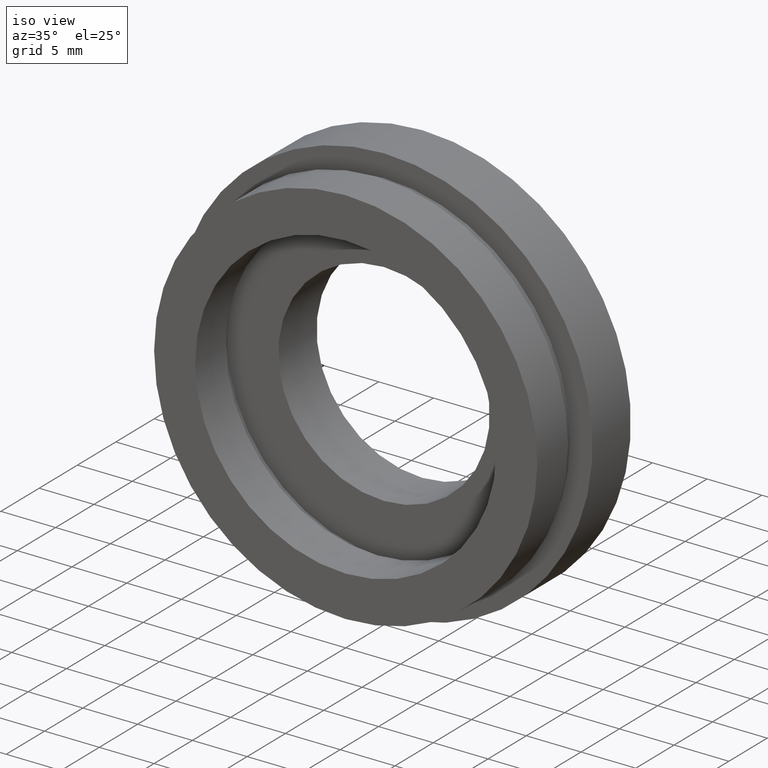
[diagram: clean part render]
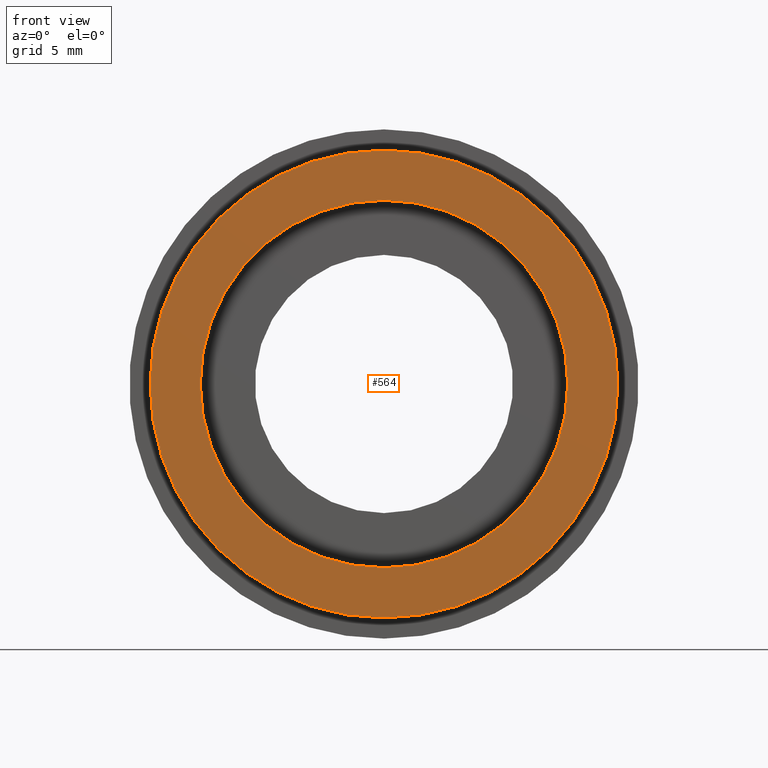
[diagram: tour spotlight — one face highlighted and labeled with its STEP entity id]
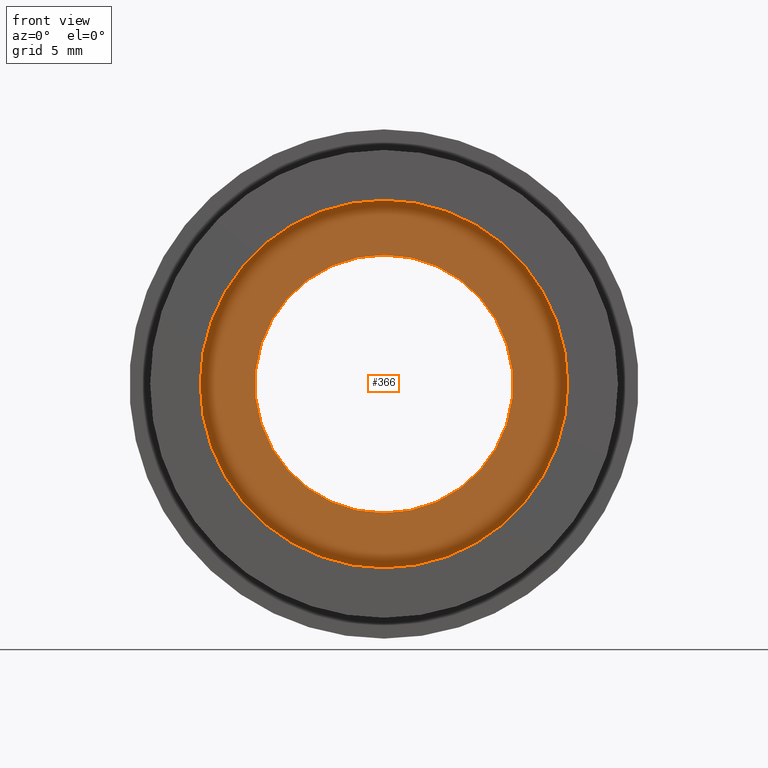
[diagram: tour spotlight — one face highlighted and labeled with its STEP entity id]
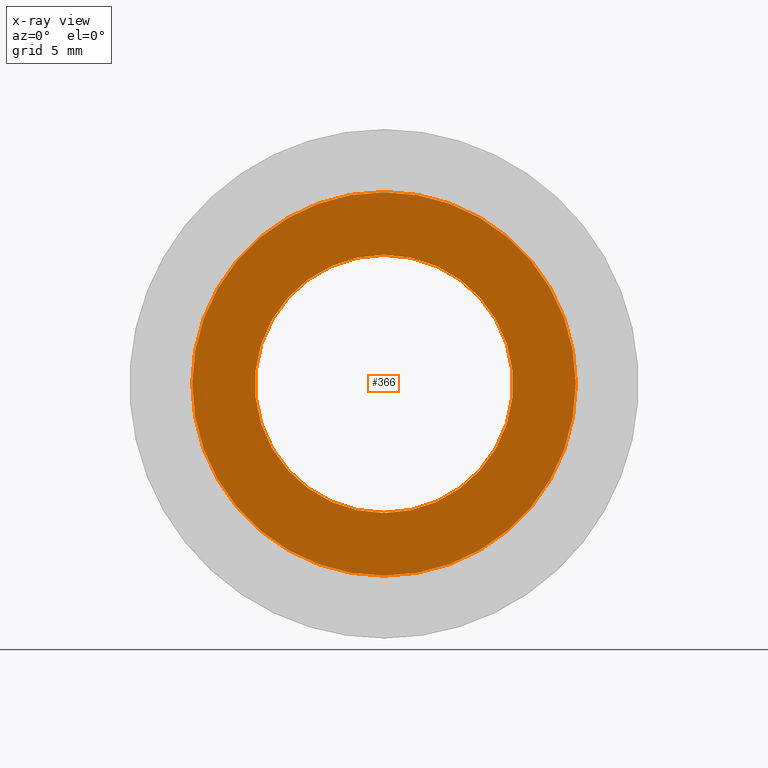
[diagram: x-ray of the same camera — body ghosted, this tour face saturated]
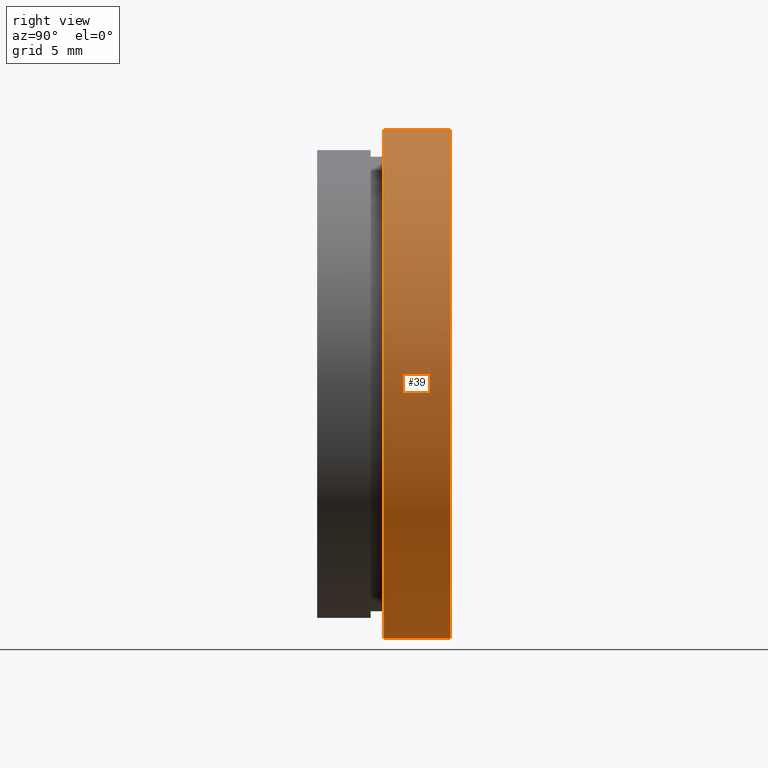
[diagram: tour spotlight — one face highlighted and labeled with its STEP entity id]
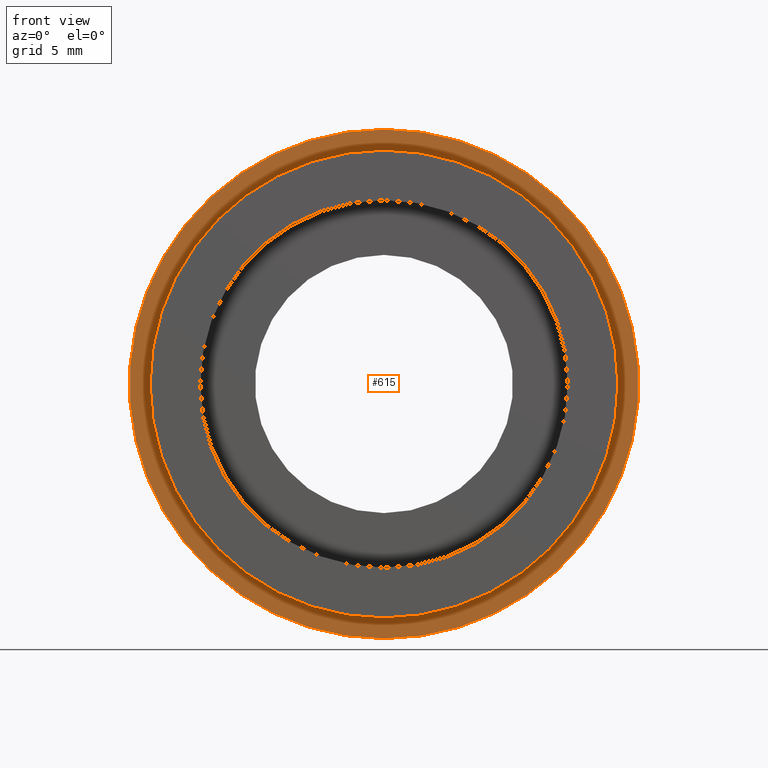
[diagram: tour spotlight — one face highlighted and labeled with its STEP entity id]
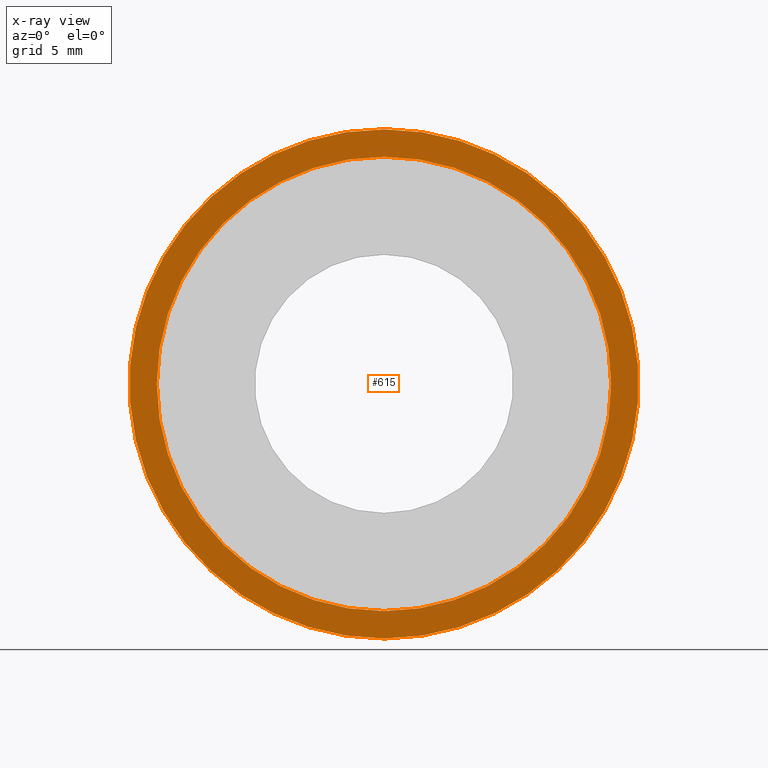
[diagram: x-ray of the same camera — body ghosted, this tour face saturated]
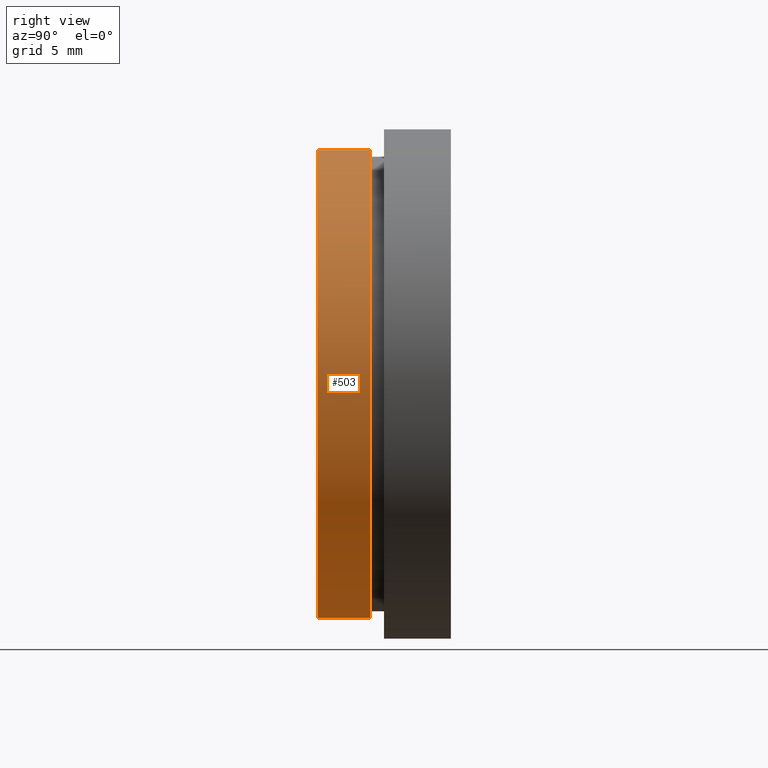
[diagram: tour spotlight — one face highlighted and labeled with its STEP entity id]
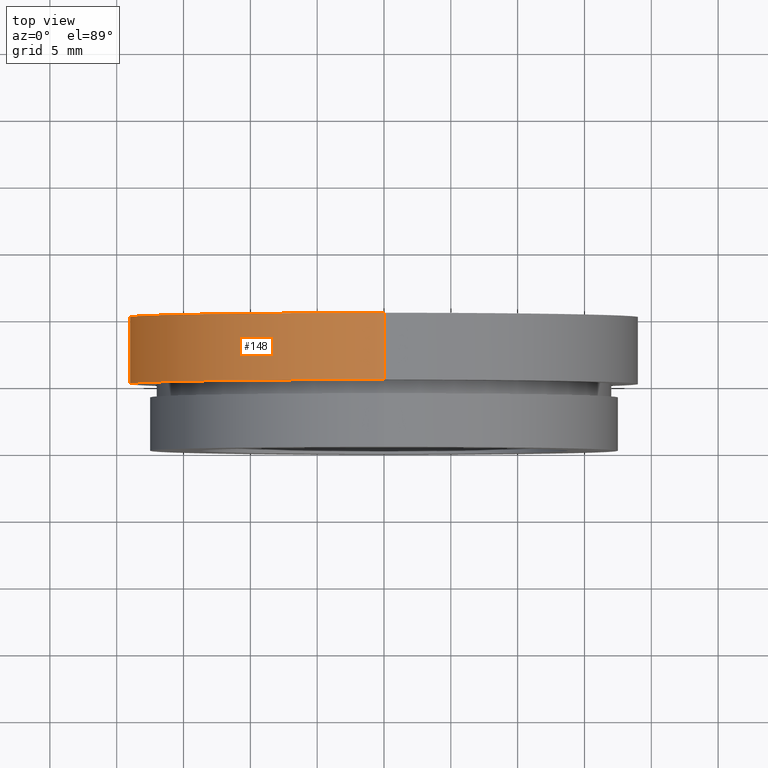
[diagram: tour spotlight — one face highlighted and labeled with its STEP entity id]
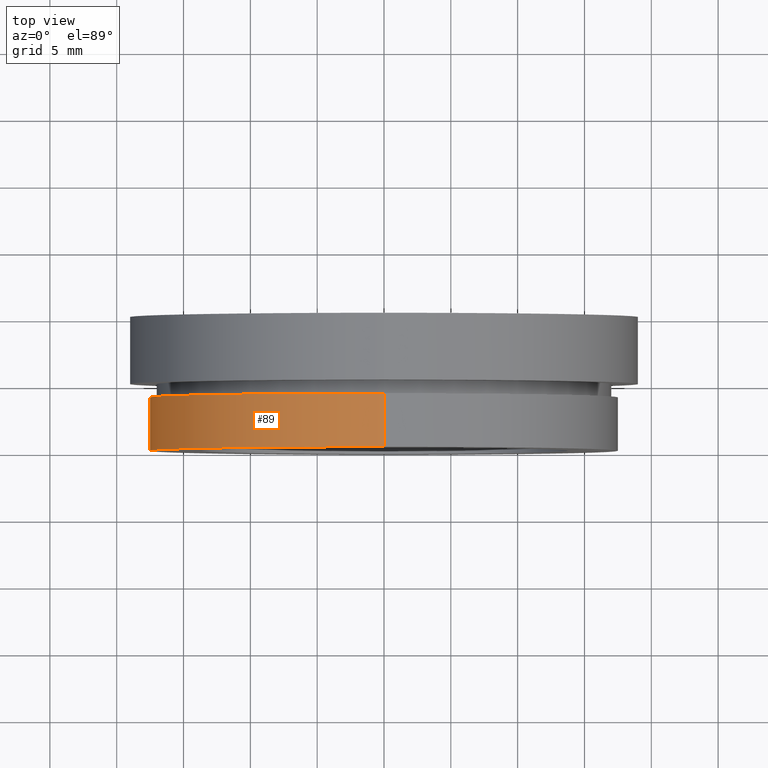
[diagram: tour spotlight — one face highlighted and labeled with its STEP entity id]
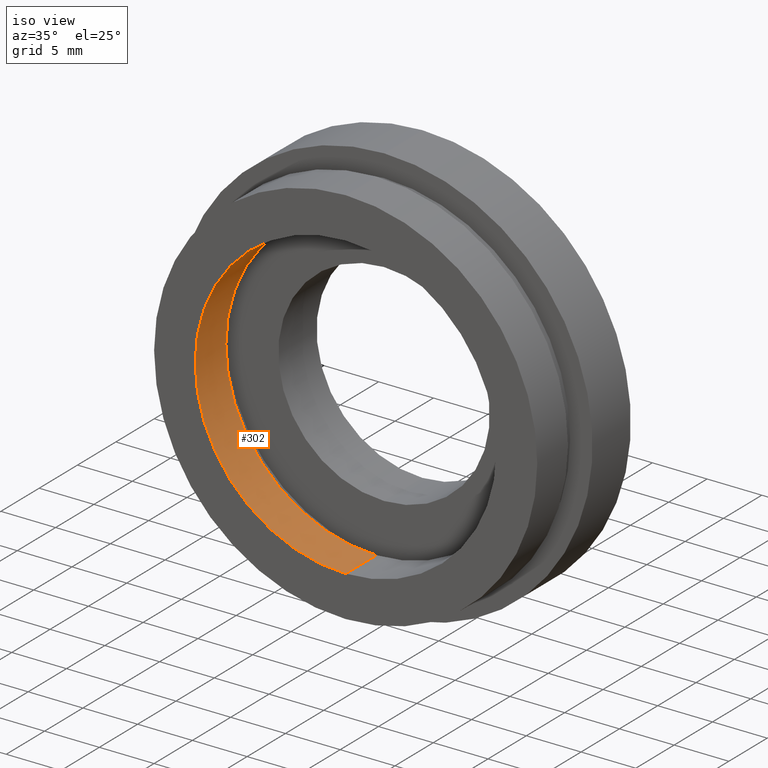
[diagram: tour spotlight — one face highlighted and labeled with its STEP entity id]
A machine part: a face-by-face anatomy tour. The part has 18 B-rep faces; the first image is the clean iso view, then the 8 largest visible faces are spotlighted one at a time (largest first), each with its STEP entity span.

Face 1 — front view, entity #564. In plain terms, the highlighted planar face has unit normal (-0, 1, 0).
Definition (entity closure, byte-faithful):
#36 = CARTESIAN_POINT ( 'NONE',  ( 0.0000000000000000000, 0.0000000000000000000, 0.0000000000000000000 ) ) ;
#44 = DIRECTION ( 'NONE',  ( -0.0000000000000000000, 1.000000000000000000, -0.0000000000000000000 ) ) ;
#69 = ORIENTED_EDGE ( 'NONE', *, *, #443, .T. ) ;
#88 = VERTEX_POINT ( 'NONE', #235 ) ;
#92 = EDGE_CURVE ( 'NONE', #88, #217, #517, .T. ) ;
#158 = DIRECTION ( 'NONE',  ( -0.0000000000000000000, 1.000000000000000000, 0.0000000000000000000 ) ) ;
#192 = DIRECTION ( 'NONE',  ( 0.0000000000000000000, 0.0000000000000000000, 1.000000000000000000 ) ) ;
#217 = VERTEX_POINT ( 'NONE', #509 ) ;
#231 = ORIENTED_EDGE ( 'NONE', *, *, #542, .T. ) ;
#235 = CARTESIAN_POINT ( 'NONE',  ( 2.143131898507868200E-015, 0.0000000000000000000, -17.50000000000000000 ) ) ;
#236 = CIRCLE ( 'NONE', #614, 13.75000000000000000 ) ;
#240 = DIRECTION ( 'NONE',  ( 0.0000000000000000000, 0.0000000000000000000, 1.000000000000000000 ) ) ;
#261 = CARTESIAN_POINT ( 'NONE',  ( 17.50000000000000000, -4.439344646909156000E-016, 0.0000000000000000000 ) ) ;
#278 = ORIENTED_EDGE ( 'NONE', *, *, #465, .F. ) ;
#286 = FACE_BOUND ( 'NONE', #459, .T. ) ;
#290 = DIRECTION ( 'NONE',  ( -0.0000000000000000000, 1.000000000000000000, -0.0000000000000000000 ) ) ;
#296 = CARTESIAN_POINT ( 'NONE',  ( 0.0000000000000000000, -1.734723475976807100E-015, 13.75000000000000000 ) ) ;
#312 = PLANE ( 'NONE',  #315 ) ;
#314 = CIRCLE ( 'NONE', #438, 13.75000000000000000 ) ;
#315 = AXIS2_PLACEMENT_3D ( 'NONE', #261, #158, #240 ) ;
#360 = CIRCLE ( 'NONE', #566, 17.50000000000000000 ) ;
#384 = DIRECTION ( 'NONE',  ( -0.0000000000000000000, 1.000000000000000000, -0.0000000000000000000 ) ) ;
#393 = EDGE_LOOP ( 'NONE', ( #278, #491 ) ) ;
#408 = CARTESIAN_POINT ( 'NONE',  ( 0.0000000000000000000, 0.0000000000000000000, 0.0000000000000000000 ) ) ;
#434 = CARTESIAN_POINT ( 'NONE',  ( 0.0000000000000000000, -1.734723475976807100E-015, 0.0000000000000000000 ) ) ;
#438 = AXIS2_PLACEMENT_3D ( 'NONE', #516, #290, #563 ) ;
#443 = EDGE_CURVE ( 'NONE', #500, #489, #236, .T. ) ;
#459 = EDGE_LOOP ( 'NONE', ( #231, #69 ) ) ;
#465 = EDGE_CURVE ( 'NONE', #217, #88, #360, .T. ) ;
#473 = AXIS2_PLACEMENT_3D ( 'NONE', #36, #384, #559 ) ;
#489 = VERTEX_POINT ( 'NONE', #296 ) ;
#491 = ORIENTED_EDGE ( 'NONE', *, *, #92, .F. ) ;
#500 = VERTEX_POINT ( 'NONE', #618 ) ;
#509 = CARTESIAN_POINT ( 'NONE',  ( 0.0000000000000000000, 0.0000000000000000000, 17.50000000000000000 ) ) ;
#516 = CARTESIAN_POINT ( 'NONE',  ( 0.0000000000000000000, -1.734723475976807100E-015, 0.0000000000000000000 ) ) ;
#517 = CIRCLE ( 'NONE', #473, 17.50000000000000000 ) ;
#542 = EDGE_CURVE ( 'NONE', #489, #500, #314, .T. ) ;
#548 = DIRECTION ( 'NONE',  ( 0.0000000000000000000, 0.0000000000000000000, 1.000000000000000000 ) ) ;
#549 = DIRECTION ( 'NONE',  ( -0.0000000000000000000, 1.000000000000000000, -0.0000000000000000000 ) ) ;
#559 = DIRECTION ( 'NONE',  ( 0.0000000000000000000, 0.0000000000000000000, 1.000000000000000000 ) ) ;
#563 = DIRECTION ( 'NONE',  ( 0.0000000000000000000, 0.0000000000000000000, 1.000000000000000000 ) ) ;
#564 = ADVANCED_FACE ( 'NONE', ( #573, #286 ), #312, .F. ) ;
#566 = AXIS2_PLACEMENT_3D ( 'NONE', #408, #549, #548 ) ;
#573 = FACE_OUTER_BOUND ( 'NONE', #393, .T. ) ;
#614 = AXIS2_PLACEMENT_3D ( 'NONE', #434, #44, #192 ) ;
#618 = CARTESIAN_POINT ( 'NONE',  ( 1.683889348827610900E-015, -1.734723475976807100E-015, -13.75000000000000000 ) ) ;

Face 2 — front view, entity #366. An x-ray twin of the same camera follows (body ghosted, this face saturated) — the face is partly hidden behind the body. In plain terms, the highlighted planar face has unit normal (-0, 1, 0).
Definition (entity closure, byte-faithful):
#12 = DIRECTION ( 'NONE',  ( -0.0000000000000000000, 1.000000000000000000, -0.0000000000000000000 ) ) ;
#45 = ORIENTED_EDGE ( 'NONE', *, *, #162, .F. ) ;
#64 = CARTESIAN_POINT ( 'NONE',  ( 1.183008807976343300E-015, 5.000000000000000900, -9.660000000000000100 ) ) ;
#79 = EDGE_CURVE ( 'NONE', #363, #215, #108, .T. ) ;
#94 = CARTESIAN_POINT ( 'NONE',  ( 0.0000000000000000000, 5.000000000000000900, 0.0000000000000000000 ) ) ;
#108 = CIRCLE ( 'NONE', #407, 9.660000000000000100 ) ;
#112 = ORIENTED_EDGE ( 'NONE', *, *, #597, .T. ) ;
#115 = DIRECTION ( 'NONE',  ( -0.0000000000000000000, 1.000000000000000000, -0.0000000000000000000 ) ) ;
#162 = EDGE_CURVE ( 'NONE', #248, #316, #347, .T. ) ;
#167 = CARTESIAN_POINT ( 'NONE',  ( 0.0000000000000000000, 4.999999999999999100, 14.35000000000000000 ) ) ;
#171 = AXIS2_PLACEMENT_3D ( 'NONE', #94, #608, #403 ) ;
#177 = CARTESIAN_POINT ( 'NONE',  ( 14.35000000000000000, 4.999999999999999100, 0.0000000000000000000 ) ) ;
#180 = FACE_OUTER_BOUND ( 'NONE', #600, .T. ) ;
#200 = ORIENTED_EDGE ( 'NONE', *, *, #294, .F. ) ;
#215 = VERTEX_POINT ( 'NONE', #592 ) ;
#225 = CARTESIAN_POINT ( 'NONE',  ( 1.757368156776451600E-015, 4.999999999999999100, -14.35000000000000000 ) ) ;
#239 = CIRCLE ( 'NONE', #309, 14.35000000000000000 ) ;
#248 = VERTEX_POINT ( 'NONE', #225 ) ;
#249 = AXIS2_PLACEMENT_3D ( 'NONE', #271, #115, #371 ) ;
#255 = CARTESIAN_POINT ( 'NONE',  ( 0.0000000000000000000, 4.999999999999999100, 0.0000000000000000000 ) ) ;
#257 = CARTESIAN_POINT ( 'NONE',  ( 0.0000000000000000000, 5.000000000000000900, 0.0000000000000000000 ) ) ;
#271 = CARTESIAN_POINT ( 'NONE',  ( 0.0000000000000000000, 4.999999999999999100, 0.0000000000000000000 ) ) ;
#294 = EDGE_CURVE ( 'NONE', #316, #248, #239, .T. ) ;
#309 = AXIS2_PLACEMENT_3D ( 'NONE', #255, #322, #505 ) ;
#316 = VERTEX_POINT ( 'NONE', #167 ) ;
#322 = DIRECTION ( 'NONE',  ( -0.0000000000000000000, 1.000000000000000000, -0.0000000000000000000 ) ) ;
#325 = PLANE ( 'NONE',  #495 ) ;
#327 = DIRECTION ( 'NONE',  ( 0.0000000000000000000, 0.0000000000000000000, 1.000000000000000000 ) ) ;
#347 = CIRCLE ( 'NONE', #249, 14.35000000000000000 ) ;
#363 = VERTEX_POINT ( 'NONE', #64 ) ;
#366 = ADVANCED_FACE ( 'NONE', ( #180, #497 ), #325, .F. ) ;
#371 = DIRECTION ( 'NONE',  ( 0.0000000000000000000, 0.0000000000000000000, 1.000000000000000000 ) ) ;
#403 = DIRECTION ( 'NONE',  ( 0.0000000000000000000, 0.0000000000000000000, 1.000000000000000000 ) ) ;
#407 = AXIS2_PLACEMENT_3D ( 'NONE', #257, #12, #496 ) ;
#482 = CIRCLE ( 'NONE', #171, 9.660000000000000100 ) ;
#495 = AXIS2_PLACEMENT_3D ( 'NONE', #177, #527, #327 ) ;
#496 = DIRECTION ( 'NONE',  ( 0.0000000000000000000, 0.0000000000000000000, 1.000000000000000000 ) ) ;
#497 = FACE_BOUND ( 'NONE', #525, .T. ) ;
#505 = DIRECTION ( 'NONE',  ( 0.0000000000000000000, 0.0000000000000000000, 1.000000000000000000 ) ) ;
#525 = EDGE_LOOP ( 'NONE', ( #112, #593 ) ) ;
#527 = DIRECTION ( 'NONE',  ( -0.0000000000000000000, 1.000000000000000000, 0.0000000000000000000 ) ) ;
#592 = CARTESIAN_POINT ( 'NONE',  ( 0.0000000000000000000, 5.000000000000000900, 9.660000000000000100 ) ) ;
#593 = ORIENTED_EDGE ( 'NONE', *, *, #79, .T. ) ;
#597 = EDGE_CURVE ( 'NONE', #215, #363, #482, .T. ) ;
#600 = EDGE_LOOP ( 'NONE', ( #200, #45 ) ) ;
#608 = DIRECTION ( 'NONE',  ( -0.0000000000000000000, 1.000000000000000000, -0.0000000000000000000 ) ) ;

Face 3 — right view, entity #39. In plain terms, the highlighted cylindrical surface (partial cylindrical patch) has radius 19.05 mm, axis along (-0, 1, -0).
Definition (entity closure, byte-faithful):
#8 = AXIS2_PLACEMENT_3D ( 'NONE', #374, #583, #230 ) ;
#35 = EDGE_CURVE ( 'NONE', #97, #594, #226, .T. ) ;
#39 = ADVANCED_FACE ( 'NONE', ( #170 ), #121, .T. ) ;
#43 = CARTESIAN_POINT ( 'NONE',  ( 0.0000000000000000000, 5.000000000000000900, 0.0000000000000000000 ) ) ;
#55 = VECTOR ( 'NONE', #86, 1000.000000000000000 ) ;
#65 = ORIENTED_EDGE ( 'NONE', *, *, #72, .T. ) ;
#70 = CARTESIAN_POINT ( 'NONE',  ( 0.0000000000000000000, 13.74468085106383300, 19.05000000000000400 ) ) ;
#72 = EDGE_CURVE ( 'NONE', #97, #117, #603, .T. ) ;
#73 = ORIENTED_EDGE ( 'NONE', *, *, #35, .F. ) ;
#86 = DIRECTION ( 'NONE',  ( -0.0000000000000000000, 1.000000000000000000, -0.0000000000000000000 ) ) ;
#97 = VERTEX_POINT ( 'NONE', #136 ) ;
#110 = EDGE_CURVE ( 'NONE', #117, #467, #270, .T. ) ;
#117 = VERTEX_POINT ( 'NONE', #138 ) ;
#121 = CYLINDRICAL_SURFACE ( 'NONE', #348, 19.05000000000000400 ) ;
#127 = AXIS2_PLACEMENT_3D ( 'NONE', #43, #297, #568 ) ;
#128 = DIRECTION ( 'NONE',  ( -0.0000000000000000000, 1.000000000000000000, -0.0000000000000000000 ) ) ;
#136 = CARTESIAN_POINT ( 'NONE',  ( 0.0000000000000000000, 5.000000000000000900, 19.05000000000000400 ) ) ;
#138 = CARTESIAN_POINT ( 'NONE',  ( 2.332952152375708400E-015, 5.000000000000000900, -19.05000000000000400 ) ) ;
#140 = CIRCLE ( 'NONE', #8, 19.05000000000000400 ) ;
#142 = DIRECTION ( 'NONE',  ( 0.0000000000000000000, 0.0000000000000000000, 1.000000000000000000 ) ) ;
#146 = EDGE_CURVE ( 'NONE', #594, #467, #140, .T. ) ;
#170 = FACE_OUTER_BOUND ( 'NONE', #540, .T. ) ;
#173 = ORIENTED_EDGE ( 'NONE', *, *, #146, .F. ) ;
#226 = LINE ( 'NONE', #70, #55 ) ;
#230 = DIRECTION ( 'NONE',  ( 0.0000000000000000000, 0.0000000000000000000, 1.000000000000000000 ) ) ;
#270 = LINE ( 'NONE', #606, #469 ) ;
#297 = DIRECTION ( 'NONE',  ( -0.0000000000000000000, 1.000000000000000000, -0.0000000000000000000 ) ) ;
#348 = AXIS2_PLACEMENT_3D ( 'NONE', #561, #412, #142 ) ;
#374 = CARTESIAN_POINT ( 'NONE',  ( 0.0000000000000000000, 9.999999999999998200, 0.0000000000000000000 ) ) ;
#379 = ORIENTED_EDGE ( 'NONE', *, *, #110, .T. ) ;
#380 = CARTESIAN_POINT ( 'NONE',  ( 2.332952152375708400E-015, 9.999999999999998200, -19.05000000000000400 ) ) ;
#412 = DIRECTION ( 'NONE',  ( -0.0000000000000000000, 1.000000000000000000, -0.0000000000000000000 ) ) ;
#444 = CARTESIAN_POINT ( 'NONE',  ( 0.0000000000000000000, 9.999999999999998200, 19.05000000000000400 ) ) ;
#467 = VERTEX_POINT ( 'NONE', #380 ) ;
#469 = VECTOR ( 'NONE', #128, 1000.000000000000000 ) ;
#540 = EDGE_LOOP ( 'NONE', ( #65, #379, #173, #73 ) ) ;
#561 = CARTESIAN_POINT ( 'NONE',  ( 0.0000000000000000000, 13.74468085106383300, 0.0000000000000000000 ) ) ;
#568 = DIRECTION ( 'NONE',  ( 0.0000000000000000000, 0.0000000000000000000, 1.000000000000000000 ) ) ;
#583 = DIRECTION ( 'NONE',  ( -0.0000000000000000000, 1.000000000000000000, -0.0000000000000000000 ) ) ;
#594 = VERTEX_POINT ( 'NONE', #444 ) ;
#603 = CIRCLE ( 'NONE', #127, 19.05000000000000400 ) ;
#606 = CARTESIAN_POINT ( 'NONE',  ( 2.332952152375708400E-015, 13.74468085106383300, -19.05000000000000400 ) ) ;

Face 4 — front view, entity #615. An x-ray twin of the same camera follows (body ghosted, this face saturated) — the face is partly hidden behind the body. In plain terms, the highlighted planar face has unit normal (-0, 1, 0).
Definition (entity closure, byte-faithful):
#43 = CARTESIAN_POINT ( 'NONE',  ( 0.0000000000000000000, 5.000000000000000900, 0.0000000000000000000 ) ) ;
#56 = FACE_OUTER_BOUND ( 'NONE', #466, .T. ) ;
#61 = AXIS2_PLACEMENT_3D ( 'NONE', #590, #274, #193 ) ;
#72 = EDGE_CURVE ( 'NONE', #97, #117, #603, .T. ) ;
#74 = AXIS2_PLACEMENT_3D ( 'NONE', #185, #328, #91 ) ;
#91 = DIRECTION ( 'NONE',  ( 0.0000000000000000000, 0.0000000000000000000, 1.000000000000000000 ) ) ;
#97 = VERTEX_POINT ( 'NONE', #136 ) ;
#98 = VERTEX_POINT ( 'NONE', #430 ) ;
#107 = ORIENTED_EDGE ( 'NONE', *, *, #72, .F. ) ;
#117 = VERTEX_POINT ( 'NONE', #138 ) ;
#123 = ORIENTED_EDGE ( 'NONE', *, *, #622, .T. ) ;
#127 = AXIS2_PLACEMENT_3D ( 'NONE', #43, #297, #568 ) ;
#136 = CARTESIAN_POINT ( 'NONE',  ( 0.0000000000000000000, 5.000000000000000900, 19.05000000000000400 ) ) ;
#138 = CARTESIAN_POINT ( 'NONE',  ( 2.332952152375708400E-015, 5.000000000000000900, -19.05000000000000400 ) ) ;
#150 = CIRCLE ( 'NONE', #378, 19.05000000000000400 ) ;
#184 = CARTESIAN_POINT ( 'NONE',  ( 0.0000000000000000000, 5.000000000000000900, 0.0000000000000000000 ) ) ;
#185 = CARTESIAN_POINT ( 'NONE',  ( 0.0000000000000000000, 5.000000000000000900, 0.0000000000000000000 ) ) ;
#193 = DIRECTION ( 'NONE',  ( 0.0000000000000000000, 0.0000000000000000000, 1.000000000000000000 ) ) ;
#194 = CIRCLE ( 'NONE', #468, 17.00000000000000000 ) ;
#199 = CARTESIAN_POINT ( 'NONE',  ( 0.0000000000000000000, 5.000000000000000900, 17.00000000000000000 ) ) ;
#219 = DIRECTION ( 'NONE',  ( -0.0000000000000000000, 1.000000000000000000, -0.0000000000000000000 ) ) ;
#250 = PLANE ( 'NONE',  #61 ) ;
#260 = ORIENTED_EDGE ( 'NONE', *, *, #530, .T. ) ;
#273 = EDGE_CURVE ( 'NONE', #117, #97, #150, .T. ) ;
#274 = DIRECTION ( 'NONE',  ( -0.0000000000000000000, 1.000000000000000000, 0.0000000000000000000 ) ) ;
#297 = DIRECTION ( 'NONE',  ( -0.0000000000000000000, 1.000000000000000000, -0.0000000000000000000 ) ) ;
#306 = CARTESIAN_POINT ( 'NONE',  ( 0.0000000000000000000, 5.000000000000000900, 0.0000000000000000000 ) ) ;
#311 = DIRECTION ( 'NONE',  ( 0.0000000000000000000, 0.0000000000000000000, 1.000000000000000000 ) ) ;
#328 = DIRECTION ( 'NONE',  ( -0.0000000000000000000, 1.000000000000000000, -0.0000000000000000000 ) ) ;
#364 = EDGE_LOOP ( 'NONE', ( #260, #123 ) ) ;
#365 = VERTEX_POINT ( 'NONE', #199 ) ;
#378 = AXIS2_PLACEMENT_3D ( 'NONE', #306, #404, #418 ) ;
#404 = DIRECTION ( 'NONE',  ( -0.0000000000000000000, 1.000000000000000000, -0.0000000000000000000 ) ) ;
#418 = DIRECTION ( 'NONE',  ( 0.0000000000000000000, 0.0000000000000000000, 1.000000000000000000 ) ) ;
#430 = CARTESIAN_POINT ( 'NONE',  ( 2.081899558550500300E-015, 5.000000000000000900, -17.00000000000000000 ) ) ;
#466 = EDGE_LOOP ( 'NONE', ( #107, #589 ) ) ;
#468 = AXIS2_PLACEMENT_3D ( 'NONE', #184, #219, #311 ) ;
#513 = CIRCLE ( 'NONE', #74, 17.00000000000000000 ) ;
#530 = EDGE_CURVE ( 'NONE', #365, #98, #194, .T. ) ;
#538 = FACE_BOUND ( 'NONE', #364, .T. ) ;
#568 = DIRECTION ( 'NONE',  ( 0.0000000000000000000, 0.0000000000000000000, 1.000000000000000000 ) ) ;
#589 = ORIENTED_EDGE ( 'NONE', *, *, #273, .F. ) ;
#590 = CARTESIAN_POINT ( 'NONE',  ( 19.05000000000000400, 5.000000000000000000, 0.0000000000000000000 ) ) ;
#603 = CIRCLE ( 'NONE', #127, 19.05000000000000400 ) ;
#615 = ADVANCED_FACE ( 'NONE', ( #56, #538 ), #250, .F. ) ;
#622 = EDGE_CURVE ( 'NONE', #98, #365, #513, .T. ) ;

Face 5 — right view, entity #503. In plain terms, the highlighted cylindrical surface (partial cylindrical patch) has radius 17.5 mm, axis along (-0, 1, -0).
Definition (entity closure, byte-faithful):
#11 = DIRECTION ( 'NONE',  ( 0.0000000000000000000, 0.0000000000000000000, 1.000000000000000000 ) ) ;
#14 = LINE ( 'NONE', #514, #220 ) ;
#21 = EDGE_CURVE ( 'NONE', #217, #201, #481, .T. ) ;
#33 = DIRECTION ( 'NONE',  ( -0.0000000000000000000, 1.000000000000000000, -0.0000000000000000000 ) ) ;
#62 = FACE_OUTER_BOUND ( 'NONE', #451, .T. ) ;
#81 = ORIENTED_EDGE ( 'NONE', *, *, #206, .T. ) ;
#88 = VERTEX_POINT ( 'NONE', #235 ) ;
#95 = CARTESIAN_POINT ( 'NONE',  ( 2.143131898507868200E-015, 4.000000000000000000, -17.50000000000000000 ) ) ;
#116 = CYLINDRICAL_SURFACE ( 'NONE', #478, 17.50000000000000000 ) ;
#165 = ORIENTED_EDGE ( 'NONE', *, *, #465, .T. ) ;
#168 = EDGE_CURVE ( 'NONE', #201, #420, #426, .T. ) ;
#197 = ORIENTED_EDGE ( 'NONE', *, *, #168, .F. ) ;
#201 = VERTEX_POINT ( 'NONE', #552 ) ;
#206 = EDGE_CURVE ( 'NONE', #88, #420, #14, .T. ) ;
#213 = AXIS2_PLACEMENT_3D ( 'NONE', #445, #507, #399 ) ;
#217 = VERTEX_POINT ( 'NONE', #509 ) ;
#220 = VECTOR ( 'NONE', #598, 1000.000000000000000 ) ;
#235 = CARTESIAN_POINT ( 'NONE',  ( 2.143131898507868200E-015, 0.0000000000000000000, -17.50000000000000000 ) ) ;
#303 = VECTOR ( 'NONE', #33, 1000.000000000000000 ) ;
#360 = CIRCLE ( 'NONE', #566, 17.50000000000000000 ) ;
#399 = DIRECTION ( 'NONE',  ( 0.0000000000000000000, 0.0000000000000000000, 1.000000000000000000 ) ) ;
#408 = CARTESIAN_POINT ( 'NONE',  ( 0.0000000000000000000, 0.0000000000000000000, 0.0000000000000000000 ) ) ;
#420 = VERTEX_POINT ( 'NONE', #95 ) ;
#425 = CARTESIAN_POINT ( 'NONE',  ( 0.0000000000000000000, 13.74468085106383300, 0.0000000000000000000 ) ) ;
#426 = CIRCLE ( 'NONE', #213, 17.50000000000000000 ) ;
#445 = CARTESIAN_POINT ( 'NONE',  ( 0.0000000000000000000, 4.000000000000000000, 0.0000000000000000000 ) ) ;
#451 = EDGE_LOOP ( 'NONE', ( #165, #81, #197, #605 ) ) ;
#465 = EDGE_CURVE ( 'NONE', #217, #88, #360, .T. ) ;
#478 = AXIS2_PLACEMENT_3D ( 'NONE', #425, #487, #11 ) ;
#481 = LINE ( 'NONE', #524, #303 ) ;
#487 = DIRECTION ( 'NONE',  ( -0.0000000000000000000, 1.000000000000000000, -0.0000000000000000000 ) ) ;
#503 = ADVANCED_FACE ( 'NONE', ( #62 ), #116, .T. ) ;
#507 = DIRECTION ( 'NONE',  ( -0.0000000000000000000, 1.000000000000000000, -0.0000000000000000000 ) ) ;
#509 = CARTESIAN_POINT ( 'NONE',  ( 0.0000000000000000000, 0.0000000000000000000, 17.50000000000000000 ) ) ;
#514 = CARTESIAN_POINT ( 'NONE',  ( 2.143131898507868200E-015, 13.74468085106383300, -17.50000000000000000 ) ) ;
#524 = CARTESIAN_POINT ( 'NONE',  ( 0.0000000000000000000, 13.74468085106383300, 17.50000000000000000 ) ) ;
#548 = DIRECTION ( 'NONE',  ( 0.0000000000000000000, 0.0000000000000000000, 1.000000000000000000 ) ) ;
#549 = DIRECTION ( 'NONE',  ( -0.0000000000000000000, 1.000000000000000000, -0.0000000000000000000 ) ) ;
#552 = CARTESIAN_POINT ( 'NONE',  ( 0.0000000000000000000, 4.000000000000000000, 17.50000000000000000 ) ) ;
#566 = AXIS2_PLACEMENT_3D ( 'NONE', #408, #549, #548 ) ;
#598 = DIRECTION ( 'NONE',  ( -0.0000000000000000000, 1.000000000000000000, -0.0000000000000000000 ) ) ;
#605 = ORIENTED_EDGE ( 'NONE', *, *, #21, .F. ) ;

Face 6 — top view, entity #148. In plain terms, the highlighted cylindrical surface (partial cylindrical patch) has radius 19.05 mm, axis along (-0, 1, -0).
Definition (entity closure, byte-faithful):
#20 = CARTESIAN_POINT ( 'NONE',  ( 0.0000000000000000000, 13.74468085106383300, 0.0000000000000000000 ) ) ;
#24 = EDGE_LOOP ( 'NONE', ( #331, #442, #428, #133 ) ) ;
#35 = EDGE_CURVE ( 'NONE', #97, #594, #226, .T. ) ;
#55 = VECTOR ( 'NONE', #86, 1000.000000000000000 ) ;
#70 = CARTESIAN_POINT ( 'NONE',  ( 0.0000000000000000000, 13.74468085106383300, 19.05000000000000400 ) ) ;
#86 = DIRECTION ( 'NONE',  ( -0.0000000000000000000, 1.000000000000000000, -0.0000000000000000000 ) ) ;
#97 = VERTEX_POINT ( 'NONE', #136 ) ;
#109 = AXIS2_PLACEMENT_3D ( 'NONE', #20, #392, #191 ) ;
#110 = EDGE_CURVE ( 'NONE', #117, #467, #270, .T. ) ;
#117 = VERTEX_POINT ( 'NONE', #138 ) ;
#120 = FACE_OUTER_BOUND ( 'NONE', #24, .T. ) ;
#128 = DIRECTION ( 'NONE',  ( -0.0000000000000000000, 1.000000000000000000, -0.0000000000000000000 ) ) ;
#133 = ORIENTED_EDGE ( 'NONE', *, *, #381, .F. ) ;
#136 = CARTESIAN_POINT ( 'NONE',  ( 0.0000000000000000000, 5.000000000000000900, 19.05000000000000400 ) ) ;
#138 = CARTESIAN_POINT ( 'NONE',  ( 2.332952152375708400E-015, 5.000000000000000900, -19.05000000000000400 ) ) ;
#148 = ADVANCED_FACE ( 'NONE', ( #120 ), #370, .T. ) ;
#150 = CIRCLE ( 'NONE', #378, 19.05000000000000400 ) ;
#191 = DIRECTION ( 'NONE',  ( 0.0000000000000000000, 0.0000000000000000000, 1.000000000000000000 ) ) ;
#210 = AXIS2_PLACEMENT_3D ( 'NONE', #382, #554, #362 ) ;
#226 = LINE ( 'NONE', #70, #55 ) ;
#270 = LINE ( 'NONE', #606, #469 ) ;
#273 = EDGE_CURVE ( 'NONE', #117, #97, #150, .T. ) ;
#306 = CARTESIAN_POINT ( 'NONE',  ( 0.0000000000000000000, 5.000000000000000900, 0.0000000000000000000 ) ) ;
#331 = ORIENTED_EDGE ( 'NONE', *, *, #110, .F. ) ;
#362 = DIRECTION ( 'NONE',  ( 0.0000000000000000000, 0.0000000000000000000, 1.000000000000000000 ) ) ;
#370 = CYLINDRICAL_SURFACE ( 'NONE', #109, 19.05000000000000400 ) ;
#378 = AXIS2_PLACEMENT_3D ( 'NONE', #306, #404, #418 ) ;
#380 = CARTESIAN_POINT ( 'NONE',  ( 2.332952152375708400E-015, 9.999999999999998200, -19.05000000000000400 ) ) ;
#381 = EDGE_CURVE ( 'NONE', #467, #594, #390, .T. ) ;
#382 = CARTESIAN_POINT ( 'NONE',  ( 0.0000000000000000000, 9.999999999999998200, 0.0000000000000000000 ) ) ;
#390 = CIRCLE ( 'NONE', #210, 19.05000000000000400 ) ;
#392 = DIRECTION ( 'NONE',  ( -0.0000000000000000000, 1.000000000000000000, -0.0000000000000000000 ) ) ;
#404 = DIRECTION ( 'NONE',  ( -0.0000000000000000000, 1.000000000000000000, -0.0000000000000000000 ) ) ;
#418 = DIRECTION ( 'NONE',  ( 0.0000000000000000000, 0.0000000000000000000, 1.000000000000000000 ) ) ;
#428 = ORIENTED_EDGE ( 'NONE', *, *, #35, .T. ) ;
#442 = ORIENTED_EDGE ( 'NONE', *, *, #273, .T. ) ;
#444 = CARTESIAN_POINT ( 'NONE',  ( 0.0000000000000000000, 9.999999999999998200, 19.05000000000000400 ) ) ;
#467 = VERTEX_POINT ( 'NONE', #380 ) ;
#469 = VECTOR ( 'NONE', #128, 1000.000000000000000 ) ;
#554 = DIRECTION ( 'NONE',  ( -0.0000000000000000000, 1.000000000000000000, -0.0000000000000000000 ) ) ;
#594 = VERTEX_POINT ( 'NONE', #444 ) ;
#606 = CARTESIAN_POINT ( 'NONE',  ( 2.332952152375708400E-015, 13.74468085106383300, -19.05000000000000400 ) ) ;

Face 7 — top view, entity #89. In plain terms, the highlighted cylindrical surface (partial cylindrical patch) has radius 17.5 mm, axis along (-0, 1, -0).
Definition (entity closure, byte-faithful):
#2 = EDGE_CURVE ( 'NONE', #420, #201, #245, .T. ) ;
#14 = LINE ( 'NONE', #514, #220 ) ;
#21 = EDGE_CURVE ( 'NONE', #217, #201, #481, .T. ) ;
#33 = DIRECTION ( 'NONE',  ( -0.0000000000000000000, 1.000000000000000000, -0.0000000000000000000 ) ) ;
#36 = CARTESIAN_POINT ( 'NONE',  ( 0.0000000000000000000, 0.0000000000000000000, 0.0000000000000000000 ) ) ;
#88 = VERTEX_POINT ( 'NONE', #235 ) ;
#89 = ADVANCED_FACE ( 'NONE', ( #585 ), #432, .T. ) ;
#92 = EDGE_CURVE ( 'NONE', #88, #217, #517, .T. ) ;
#95 = CARTESIAN_POINT ( 'NONE',  ( 2.143131898507868200E-015, 4.000000000000000000, -17.50000000000000000 ) ) ;
#102 = CARTESIAN_POINT ( 'NONE',  ( 0.0000000000000000000, 13.74468085106383300, 0.0000000000000000000 ) ) ;
#157 = ORIENTED_EDGE ( 'NONE', *, *, #2, .F. ) ;
#183 = DIRECTION ( 'NONE',  ( 0.0000000000000000000, 0.0000000000000000000, 1.000000000000000000 ) ) ;
#188 = AXIS2_PLACEMENT_3D ( 'NONE', #287, #537, #493 ) ;
#201 = VERTEX_POINT ( 'NONE', #552 ) ;
#206 = EDGE_CURVE ( 'NONE', #88, #420, #14, .T. ) ;
#208 = EDGE_LOOP ( 'NONE', ( #298, #452, #616, #157 ) ) ;
#217 = VERTEX_POINT ( 'NONE', #509 ) ;
#220 = VECTOR ( 'NONE', #598, 1000.000000000000000 ) ;
#235 = CARTESIAN_POINT ( 'NONE',  ( 2.143131898507868200E-015, 0.0000000000000000000, -17.50000000000000000 ) ) ;
#245 = CIRCLE ( 'NONE', #188, 17.50000000000000000 ) ;
#287 = CARTESIAN_POINT ( 'NONE',  ( 0.0000000000000000000, 4.000000000000000000, 0.0000000000000000000 ) ) ;
#298 = ORIENTED_EDGE ( 'NONE', *, *, #206, .F. ) ;
#303 = VECTOR ( 'NONE', #33, 1000.000000000000000 ) ;
#367 = DIRECTION ( 'NONE',  ( -0.0000000000000000000, 1.000000000000000000, -0.0000000000000000000 ) ) ;
#384 = DIRECTION ( 'NONE',  ( -0.0000000000000000000, 1.000000000000000000, -0.0000000000000000000 ) ) ;
#420 = VERTEX_POINT ( 'NONE', #95 ) ;
#432 = CYLINDRICAL_SURFACE ( 'NONE', #492, 17.50000000000000000 ) ;
#452 = ORIENTED_EDGE ( 'NONE', *, *, #92, .T. ) ;
#473 = AXIS2_PLACEMENT_3D ( 'NONE', #36, #384, #559 ) ;
#481 = LINE ( 'NONE', #524, #303 ) ;
#492 = AXIS2_PLACEMENT_3D ( 'NONE', #102, #367, #183 ) ;
#493 = DIRECTION ( 'NONE',  ( 0.0000000000000000000, 0.0000000000000000000, 1.000000000000000000 ) ) ;
#509 = CARTESIAN_POINT ( 'NONE',  ( 0.0000000000000000000, 0.0000000000000000000, 17.50000000000000000 ) ) ;
#514 = CARTESIAN_POINT ( 'NONE',  ( 2.143131898507868200E-015, 13.74468085106383300, -17.50000000000000000 ) ) ;
#517 = CIRCLE ( 'NONE', #473, 17.50000000000000000 ) ;
#524 = CARTESIAN_POINT ( 'NONE',  ( 0.0000000000000000000, 13.74468085106383300, 17.50000000000000000 ) ) ;
#537 = DIRECTION ( 'NONE',  ( -0.0000000000000000000, 1.000000000000000000, -0.0000000000000000000 ) ) ;
#552 = CARTESIAN_POINT ( 'NONE',  ( 0.0000000000000000000, 4.000000000000000000, 17.50000000000000000 ) ) ;
#559 = DIRECTION ( 'NONE',  ( 0.0000000000000000000, 0.0000000000000000000, 1.000000000000000000 ) ) ;
#585 = FACE_OUTER_BOUND ( 'NONE', #208, .T. ) ;
#598 = DIRECTION ( 'NONE',  ( -0.0000000000000000000, 1.000000000000000000, -0.0000000000000000000 ) ) ;
#616 = ORIENTED_EDGE ( 'NONE', *, *, #21, .T. ) ;

Face 8 — iso view, entity #302. In plain terms, the highlighted cylindrical surface (partial cylindrical patch) has radius 13.75 mm, axis along (-0, 1, -0).
Definition (entity closure, byte-faithful):
#5 = DIRECTION ( 'NONE',  ( -0.0000000000000000000, 1.000000000000000000, -0.0000000000000000000 ) ) ;
#15 = CYLINDRICAL_SURFACE ( 'NONE', #66, 13.75000000000000200 ) ;
#44 = DIRECTION ( 'NONE',  ( -0.0000000000000000000, 1.000000000000000000, -0.0000000000000000000 ) ) ;
#59 = ORIENTED_EDGE ( 'NONE', *, *, #421, .T. ) ;
#60 = CARTESIAN_POINT ( 'NONE',  ( 0.0000000000000000000, 13.74468085106383300, 13.75000000000000200 ) ) ;
#63 = FACE_OUTER_BOUND ( 'NONE', #458, .T. ) ;
#66 = AXIS2_PLACEMENT_3D ( 'NONE', #570, #483, #272 ) ;
#78 = CARTESIAN_POINT ( 'NONE',  ( 1.683889348827611000E-015, 13.74468085106383300, -13.75000000000000200 ) ) ;
#169 = DIRECTION ( 'NONE',  ( -0.0000000000000000000, 1.000000000000000000, -0.0000000000000000000 ) ) ;
#192 = DIRECTION ( 'NONE',  ( 0.0000000000000000000, 0.0000000000000000000, 1.000000000000000000 ) ) ;
#205 = LINE ( 'NONE', #78, #448 ) ;
#224 = EDGE_CURVE ( 'NONE', #253, #283, #353, .T. ) ;
#229 = LINE ( 'NONE', #60, #321 ) ;
#236 = CIRCLE ( 'NONE', #614, 13.75000000000000000 ) ;
#251 = ORIENTED_EDGE ( 'NONE', *, *, #479, .F. ) ;
#252 = CARTESIAN_POINT ( 'NONE',  ( 0.0000000000000000000, 4.000000000000000000, 0.0000000000000000000 ) ) ;
#253 = VERTEX_POINT ( 'NONE', #596 ) ;
#272 = DIRECTION ( 'NONE',  ( 0.0000000000000000000, 0.0000000000000000000, 1.000000000000000000 ) ) ;
#283 = VERTEX_POINT ( 'NONE', #334 ) ;
#296 = CARTESIAN_POINT ( 'NONE',  ( 0.0000000000000000000, -1.734723475976807100E-015, 13.75000000000000000 ) ) ;
#302 = ADVANCED_FACE ( 'NONE', ( #63 ), #15, .F. ) ;
#310 = ORIENTED_EDGE ( 'NONE', *, *, #224, .T. ) ;
#321 = VECTOR ( 'NONE', #359, 1000.000000000000000 ) ;
#334 = CARTESIAN_POINT ( 'NONE',  ( 0.0000000000000000000, 4.000000000000000000, 13.75000000000000200 ) ) ;
#346 = AXIS2_PLACEMENT_3D ( 'NONE', #252, #169, #488 ) ;
#353 = CIRCLE ( 'NONE', #346, 13.75000000000000200 ) ;
#359 = DIRECTION ( 'NONE',  ( -0.0000000000000000000, 1.000000000000000000, -0.0000000000000000000 ) ) ;
#421 = EDGE_CURVE ( 'NONE', #500, #253, #205, .T. ) ;
#434 = CARTESIAN_POINT ( 'NONE',  ( 0.0000000000000000000, -1.734723475976807100E-015, 0.0000000000000000000 ) ) ;
#443 = EDGE_CURVE ( 'NONE', #500, #489, #236, .T. ) ;
#448 = VECTOR ( 'NONE', #5, 1000.000000000000000 ) ;
#458 = EDGE_LOOP ( 'NONE', ( #617, #59, #310, #251 ) ) ;
#479 = EDGE_CURVE ( 'NONE', #489, #283, #229, .T. ) ;
#483 = DIRECTION ( 'NONE',  ( -0.0000000000000000000, 1.000000000000000000, -0.0000000000000000000 ) ) ;
#488 = DIRECTION ( 'NONE',  ( 0.0000000000000000000, 0.0000000000000000000, 1.000000000000000000 ) ) ;
#489 = VERTEX_POINT ( 'NONE', #296 ) ;
#500 = VERTEX_POINT ( 'NONE', #618 ) ;
#570 = CARTESIAN_POINT ( 'NONE',  ( 0.0000000000000000000, 13.74468085106383300, 0.0000000000000000000 ) ) ;
#596 = CARTESIAN_POINT ( 'NONE',  ( 1.683889348827611000E-015, 4.000000000000000000, -13.75000000000000200 ) ) ;
#614 = AXIS2_PLACEMENT_3D ( 'NONE', #434, #44, #192 ) ;
#617 = ORIENTED_EDGE ( 'NONE', *, *, #443, .F. ) ;
#618 = CARTESIAN_POINT ( 'NONE',  ( 1.683889348827610900E-015, -1.734723475976807100E-015, -13.75000000000000000 ) ) ;